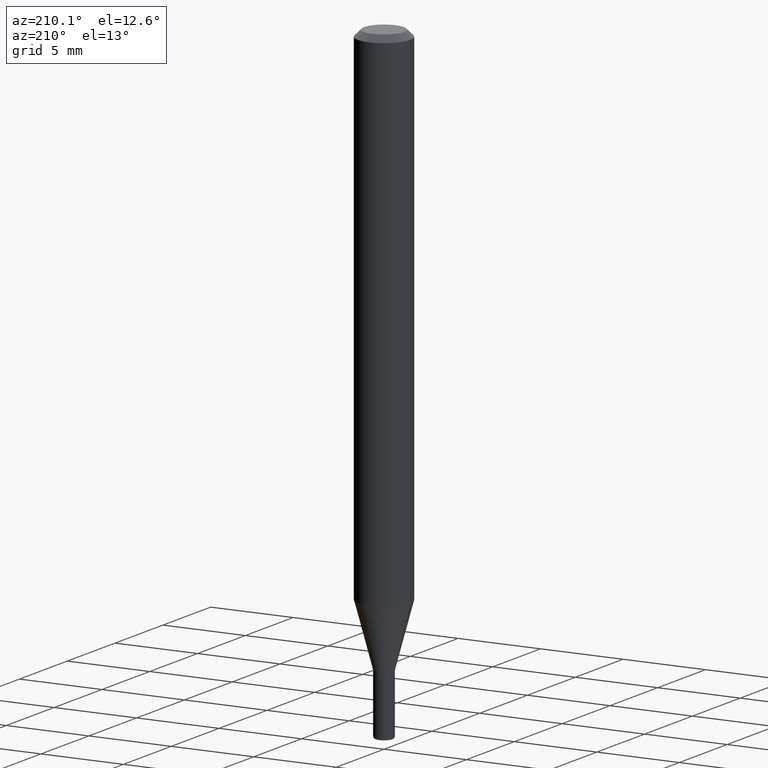
[diagram: clean part render]
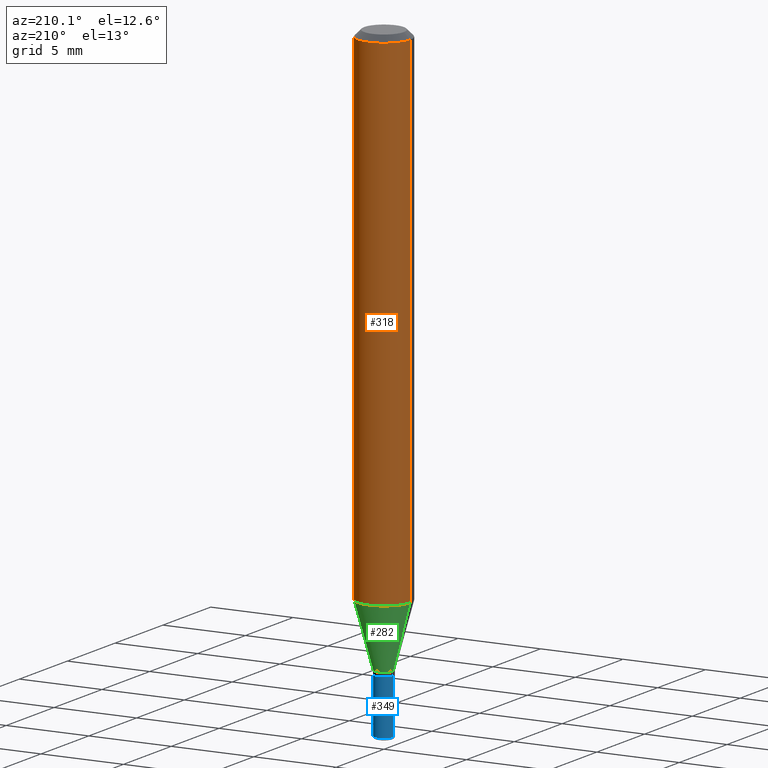
[diagram: same view with three faces highlighted in distinct colors, each labeled with its STEP entity id]
A machine part, auxiliary view with three faces highlighted in distinct colors.
Their STEP definitions:

[orange] entity #318 — the highlighted cylindrical surface (edge-blend (fillet) strip) has radius 1.5875 mm, axis along (-0, 0, 1).
#5 = VERTEX_POINT ( 'NONE', #52 ) ;
#9 = DIRECTION ( 'NONE',  ( -2.445468806185136597E-29, 3.491481338843145583E-15, 1.000000000000000000 ) ) ;
#24 = CARTESIAN_POINT ( 'NONE',  ( 0.06250000000000000000, -4.646176951478207651E-15, -1.205717967697245596 ) ) ;
#27 = CARTESIAN_POINT ( 'NONE',  ( -0.06250000000000000000, 4.440892098500626162E-16, -3.074334431409316114E-30 ) ) ;
#36 = FACE_OUTER_BOUND ( 'NONE', #514, .T. ) ;
#43 = CARTESIAN_POINT ( 'NONE',  ( 0.06250000000000000000, -4.364351673553916694E-16, 3.047610484872459871E-30 ) ) ;
#52 = CARTESIAN_POINT ( 'NONE',  ( 0.06250000000000000000, -4.888073874380378612E-16, -0.01499999999999970281 ) ) ;
#61 = AXIS2_PLACEMENT_3D ( 'NONE', #223, #332, #83 ) ;
#83 = DIRECTION ( 'NONE',  ( 1.000000000000000000, -6.982962677686266711E-15, 0.000000000000000000 ) ) ;
#105 = AXIS2_PLACEMENT_3D ( 'NONE', #396, #9, #368 ) ;
#108 = EDGE_CURVE ( 'NONE', #440, #5, #449, .T. ) ;
#130 = VERTEX_POINT ( 'NONE', #442 ) ;
#151 = EDGE_CURVE ( 'NONE', #440, #130, #472, .T. ) ;
#155 = CIRCLE ( 'NONE', #61, 0.06250000000000000000 ) ;
#171 = ORIENTED_EDGE ( 'NONE', *, *, #463, .T. ) ;
#191 = DIRECTION ( 'NONE',  ( -2.445468806185136877E-29, 3.491481338843145188E-15, 1.000000000000000000 ) ) ;
#205 = DIRECTION ( 'NONE',  ( -2.445468806185136877E-29, 3.491481338843145188E-15, 1.000000000000000000 ) ) ;
#206 = VERTEX_POINT ( 'NONE', #295 ) ;
#223 = CARTESIAN_POINT ( 'NONE',  ( 3.668203209277632395E-31, -5.237222008264614861E-17, -0.01499999999999970281 ) ) ;
#224 = ORIENTED_EDGE ( 'NONE', *, *, #108, .F. ) ;
#231 = AXIS2_PLACEMENT_3D ( 'NONE', #471, #244, #426 ) ;
#244 = DIRECTION ( 'NONE',  ( -2.445468806185136597E-29, 3.491481338843145583E-15, 1.000000000000000000 ) ) ;
#279 = CYLINDRICAL_SURFACE ( 'NONE', #231, 0.06250000000000000000 ) ;
#295 = CARTESIAN_POINT ( 'NONE',  ( -0.06250000000000000000, -1.686967792252668322E-15, -0.01499999999999970281 ) ) ;
#318 = ADVANCED_FACE ( 'NONE', ( #36 ), #279, .T. ) ;
#332 = DIRECTION ( 'NONE',  ( -2.445468806185136597E-29, 3.491481338843145583E-15, 1.000000000000000000 ) ) ;
#347 = VECTOR ( 'NONE', #205, 39.37007874015748143 ) ;
#368 = DIRECTION ( 'NONE',  ( 1.000000000000000000, -6.982962677686270655E-15, 0.000000000000000000 ) ) ;
#388 = VECTOR ( 'NONE', #191, 39.37007874015748143 ) ;
#389 = LINE ( 'NONE', #27, #388 ) ;
#396 = CARTESIAN_POINT ( 'NONE',  ( 2.948545679060552191E-29, -4.209741784122815192E-15, -1.205717967697245596 ) ) ;
#426 = DIRECTION ( 'NONE',  ( 1.000000000000000000, -6.982962677686266711E-15, 4.876176775795935793E-29 ) ) ;
#440 = VERTEX_POINT ( 'NONE', #24 ) ;
#442 = CARTESIAN_POINT ( 'NONE',  ( -0.06250000000000000000, -3.765652574272752576E-15, -1.205717967697245596 ) ) ;
#443 = ORIENTED_EDGE ( 'NONE', *, *, #151, .T. ) ;
#449 = LINE ( 'NONE', #43, #347 ) ;
#463 = EDGE_CURVE ( 'NONE', #130, #206, #389, .T. ) ;
#471 = CARTESIAN_POINT ( 'NONE',  ( 0.000000000000000000, 0.000000000000000000, 0.000000000000000000 ) ) ;
#472 = CIRCLE ( 'NONE', #105, 0.06250000000000000000 ) ;
#481 = ORIENTED_EDGE ( 'NONE', *, *, #492, .F. ) ;
#492 = EDGE_CURVE ( 'NONE', #5, #206, #155, .T. ) ;
#514 = EDGE_LOOP ( 'NONE', ( #443, #171, #481, #224 ) ) ;

[blue] entity #349 — the highlighted cylindrical surface (edge-blend (fillet) strip) has radius 0.5715 mm, axis along (-0, 0, 1).
#10 = ORIENTED_EDGE ( 'NONE', *, *, #319, .F. ) ;
#39 = CIRCLE ( 'NONE', #342, 0.02250000000000017958 ) ;
#46 = CARTESIAN_POINT ( 'NONE',  ( 0.02250000000000008937, -1.571166602479416074E-16, 1.097139774554090038E-30 ) ) ;
#51 = CARTESIAN_POINT ( 'NONE',  ( 3.655975865246779683E-29, -5.219764601570503930E-15, -1.495000000000000329 ) ) ;
#55 = EDGE_CURVE ( 'NONE', #439, #469, #381, .T. ) ;
#87 = VERTEX_POINT ( 'NONE', #466 ) ;
#89 = VECTOR ( 'NONE', #411, 39.37007874015748143 ) ;
#115 = DIRECTION ( 'NONE',  ( -2.445468806185136877E-29, 3.491481338843145188E-15, 1.000000000000000000 ) ) ;
#120 = DIRECTION ( 'NONE',  ( -2.445468806185136597E-29, 3.491481338843145583E-15, 1.000000000000000000 ) ) ;
#126 = EDGE_CURVE ( 'NONE', #87, #439, #39, .T. ) ;
#142 = DIRECTION ( 'NONE',  ( -2.445468806185136597E-29, 3.491481338843145583E-15, 1.000000000000000000 ) ) ;
#169 = DIRECTION ( 'NONE',  ( 1.000000000000000000, -6.982962677686255667E-15, 0.000000000000000000 ) ) ;
#188 = VECTOR ( 'NONE', #115, 39.37007874015748143 ) ;
#233 = CARTESIAN_POINT ( 'NONE',  ( 3.338064920442711836E-29, -4.765872027520893280E-15, -1.364999999999999991 ) ) ;
#259 = EDGE_LOOP ( 'NONE', ( #374, #326, #456, #10 ) ) ;
#260 = CARTESIAN_POINT ( 'NONE',  ( -0.02250000000000008937, 1.598721155460231769E-16, -1.106760395307358334E-30 ) ) ;
#284 = VERTEX_POINT ( 'NONE', #429 ) ;
#319 = EDGE_CURVE ( 'NONE', #87, #284, #361, .T. ) ;
#326 = ORIENTED_EDGE ( 'NONE', *, *, #55, .T. ) ;
#342 = AXIS2_PLACEMENT_3D ( 'NONE', #51, #433, #169 ) ;
#346 = CARTESIAN_POINT ( 'NONE',  ( -0.02250000000000017958, -4.832946198999673555E-15, -1.495000000000000329 ) ) ;
#349 = ADVANCED_FACE ( 'NONE', ( #367 ), #468, .T. ) ;
#356 = CARTESIAN_POINT ( 'NONE',  ( -0.02249999999999999917, -4.832946198999675921E-15, -1.364999999999999991 ) ) ;
#361 = LINE ( 'NONE', #46, #188 ) ;
#367 = FACE_OUTER_BOUND ( 'NONE', #259, .T. ) ;
#371 = CARTESIAN_POINT ( 'NONE',  ( 0.000000000000000000, 0.000000000000000000, 0.000000000000000000 ) ) ;
#374 = ORIENTED_EDGE ( 'NONE', *, *, #126, .T. ) ;
#381 = LINE ( 'NONE', #260, #89 ) ;
#392 = EDGE_CURVE ( 'NONE', #284, #469, #508, .T. ) ;
#411 = DIRECTION ( 'NONE',  ( -2.445468806185136877E-29, 3.491481338843145188E-15, 1.000000000000000000 ) ) ;
#421 = DIRECTION ( 'NONE',  ( 1.000000000000000000, -6.982962677686269077E-15, 0.000000000000000000 ) ) ;
#429 = CARTESIAN_POINT ( 'NONE',  ( 0.02249999999999999917, -4.922988687768834913E-15, -1.364999999999999991 ) ) ;
#432 = DIRECTION ( 'NONE',  ( 1.000000000000000000, -6.982962677686265922E-15, 4.876176775795936353E-29 ) ) ;
#433 = DIRECTION ( 'NONE',  ( -2.445468806185136597E-29, 3.491481338843145583E-15, 1.000000000000000000 ) ) ;
#439 = VERTEX_POINT ( 'NONE', #346 ) ;
#456 = ORIENTED_EDGE ( 'NONE', *, *, #392, .F. ) ;
#461 = AXIS2_PLACEMENT_3D ( 'NONE', #233, #142, #421 ) ;
#466 = CARTESIAN_POINT ( 'NONE',  ( 0.02250000000000017958, -5.376881261818446351E-15, -1.495000000000000329 ) ) ;
#468 = CYLINDRICAL_SURFACE ( 'NONE', #504, 0.02250000000000008937 ) ;
#469 = VERTEX_POINT ( 'NONE', #356 ) ;
#504 = AXIS2_PLACEMENT_3D ( 'NONE', #371, #120, #432 ) ;
#508 = CIRCLE ( 'NONE', #461, 0.02249999999999999917 ) ;

[green] entity #282 — the highlighted conical surface has half-angle 15 deg.
#4 = CARTESIAN_POINT ( 'NONE',  ( 0.02250000000000007896, -4.888073874380405630E-15, -1.355000000000000426 ) ) ;
#9 = DIRECTION ( 'NONE',  ( -2.445468806185136597E-29, 3.491481338843145583E-15, 1.000000000000000000 ) ) ;
#17 = FACE_OUTER_BOUND ( 'NONE', #518, .T. ) ;
#24 = CARTESIAN_POINT ( 'NONE',  ( 0.06250000000000000000, -4.646176951478207651E-15, -1.205717967697245596 ) ) ;
#37 = CARTESIAN_POINT ( 'NONE',  ( -0.02250000000000007896, -4.571085098586440920E-15, -1.355000000000000426 ) ) ;
#44 = ORIENTED_EDGE ( 'NONE', *, *, #186, .T. ) ;
#78 = ORIENTED_EDGE ( 'NONE', *, *, #266, .F. ) ;
#84 = LINE ( 'NONE', #37, #149 ) ;
#94 = DIRECTION ( 'NONE',  ( -2.445468806185136597E-29, 3.491481338843145583E-15, 1.000000000000000000 ) ) ;
#103 = EDGE_CURVE ( 'NONE', #170, #121, #398, .T. ) ;
#105 = AXIS2_PLACEMENT_3D ( 'NONE', #396, #9, #368 ) ;
#117 = ORIENTED_EDGE ( 'NONE', *, *, #151, .F. ) ;
#119 = CARTESIAN_POINT ( 'NONE',  ( 0.02250000000000007896, -4.888073874380405630E-15, -1.355000000000000426 ) ) ;
#121 = VERTEX_POINT ( 'NONE', #404 ) ;
#130 = VERTEX_POINT ( 'NONE', #442 ) ;
#136 = CARTESIAN_POINT ( 'NONE',  ( 3.313610232380861411E-29, -4.730957214132463998E-15, -1.355000000000000426 ) ) ;
#149 = VECTOR ( 'NONE', #338, 39.37007874015748854 ) ;
#151 = EDGE_CURVE ( 'NONE', #440, #130, #472, .T. ) ;
#153 = AXIS2_PLACEMENT_3D ( 'NONE', #136, #94, #309 ) ;
#170 = VERTEX_POINT ( 'NONE', #4 ) ;
#186 = EDGE_CURVE ( 'NONE', #121, #130, #84, .T. ) ;
#208 = DIRECTION ( 'NONE',  ( 1.000000000000000000, -6.982962677686286432E-15, 0.000000000000000000 ) ) ;
#266 = EDGE_CURVE ( 'NONE', #170, #440, #467, .T. ) ;
#282 = ADVANCED_FACE ( 'NONE', ( #17 ), #448, .T. ) ;
#283 = DIRECTION ( 'NONE',  ( 0.2588190451025206840, 1.565188264969626504E-15, 0.9659258262890682012 ) ) ;
#309 = DIRECTION ( 'NONE',  ( 1.000000000000000000, -6.982962677686286432E-15, 0.000000000000000000 ) ) ;
#329 = VECTOR ( 'NONE', #283, 39.37007874015748854 ) ;
#338 = DIRECTION ( 'NONE',  ( -0.2588190451025206840, 5.211531920934545520E-15, 0.9659258262890682012 ) ) ;
#352 = CARTESIAN_POINT ( 'NONE',  ( 3.313610232380861411E-29, -4.730957214132463998E-15, -1.355000000000000426 ) ) ;
#368 = DIRECTION ( 'NONE',  ( 1.000000000000000000, -6.982962677686270655E-15, 0.000000000000000000 ) ) ;
#396 = CARTESIAN_POINT ( 'NONE',  ( 2.948545679060552191E-29, -4.209741784122815192E-15, -1.205717967697245596 ) ) ;
#398 = CIRCLE ( 'NONE', #153, 0.02250000000000007896 ) ;
#404 = CARTESIAN_POINT ( 'NONE',  ( -0.02250000000000007896, -4.168368836429596353E-15, -1.355000000000000426 ) ) ;
#414 = ORIENTED_EDGE ( 'NONE', *, *, #103, .T. ) ;
#425 = AXIS2_PLACEMENT_3D ( 'NONE', #352, #497, #208 ) ;
#440 = VERTEX_POINT ( 'NONE', #24 ) ;
#442 = CARTESIAN_POINT ( 'NONE',  ( -0.06250000000000000000, -3.765652574272752576E-15, -1.205717967697245596 ) ) ;
#448 = CONICAL_SURFACE ( 'NONE', #425, 0.02250000000000007896, 0.2617993877991494078 ) ;
#467 = LINE ( 'NONE', #119, #329 ) ;
#472 = CIRCLE ( 'NONE', #105, 0.06250000000000000000 ) ;
#497 = DIRECTION ( 'NONE',  ( -2.445468806185136597E-29, 3.491481338843145583E-15, 1.000000000000000000 ) ) ;
#518 = EDGE_LOOP ( 'NONE', ( #414, #44, #117, #78 ) ) ;